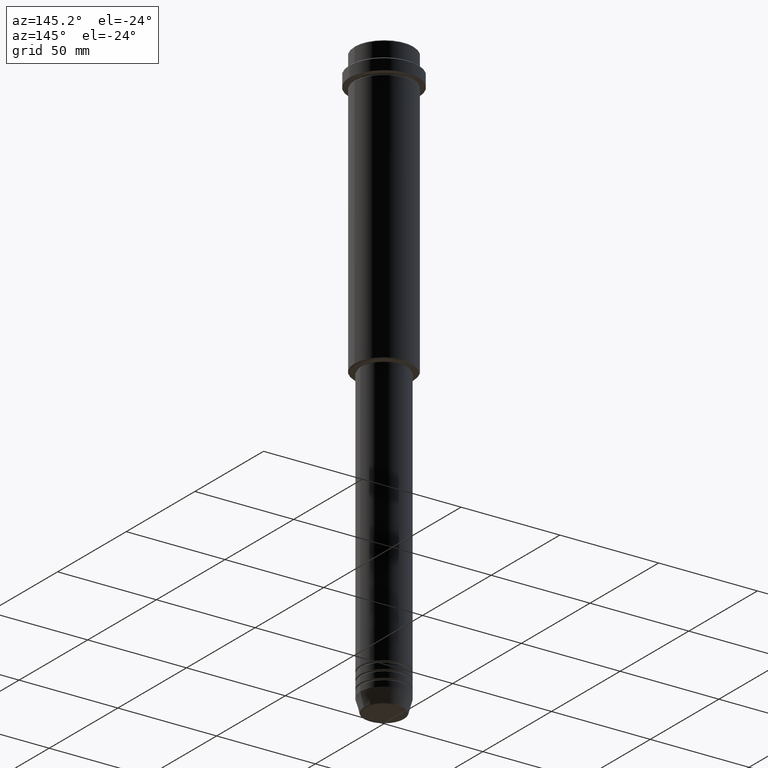
[diagram: clean part render]
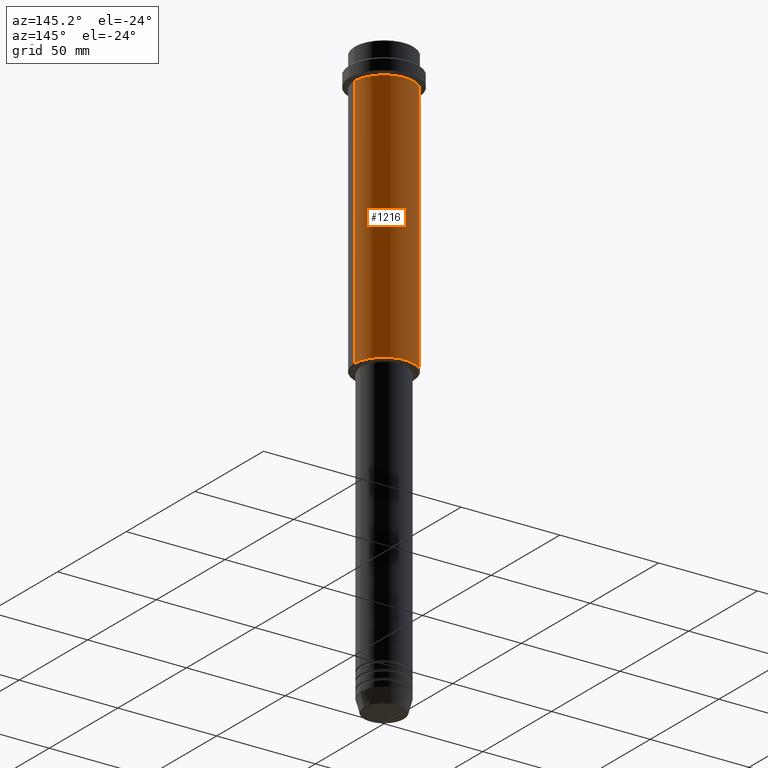
[diagram: same view with one face highlighted and labeled with its STEP entity id]
A machine part, auxiliary view. The second image highlights one B-rep face of the part: STEP entity #1216.
In plain terms, the highlighted cylindrical surface (edge-blend (fillet) strip) has radius 15 mm, axis along (-0, -0, 1).
Its self-contained STEP definition (entity closure, byte-faithful):
#14 = ORIENTED_EDGE ( 'NONE', *, *, #204, .T. ) ;
#29 = DIRECTION ( 'NONE',  ( 1.000000000000000000, 0.000000000000000000, 0.000000000000000000 ) ) ;
#51 = DIRECTION ( 'NONE',  ( -0.000000000000000000, -0.000000000000000000, 1.000000000000000000 ) ) ;
#67 = DIRECTION ( 'NONE',  ( -0.000000000000000000, -0.000000000000000000, 1.000000000000000000 ) ) ;
#73 = VERTEX_POINT ( 'NONE', #649 ) ;
#101 = VERTEX_POINT ( 'NONE', #1218 ) ;
#126 = CIRCLE ( 'NONE', #966, 15.00000000000000178 ) ;
#168 = EDGE_CURVE ( 'NONE', #73, #1340, #126, .T. ) ;
#204 = EDGE_CURVE ( 'NONE', #101, #1340, #774, .T. ) ;
#222 = AXIS2_PLACEMENT_3D ( 'NONE', #1399, #67, #311 ) ;
#241 = VECTOR ( 'NONE', #314, 1000.000000000000000 ) ;
#248 = CARTESIAN_POINT ( 'NONE',  ( 15.00000000000000000, 0.000000000000000000, -144.5000000000000568 ) ) ;
#311 = DIRECTION ( 'NONE',  ( 1.000000000000000000, 0.000000000000000000, 0.000000000000000000 ) ) ;
#314 = DIRECTION ( 'NONE',  ( -0.000000000000000000, -0.000000000000000000, 1.000000000000000000 ) ) ;
#390 = ORIENTED_EDGE ( 'NONE', *, *, #808, .F. ) ;
#391 = CYLINDRICAL_SURFACE ( 'NONE', #222, 15.00000000000000000 ) ;
#396 = VERTEX_POINT ( 'NONE', #248 ) ;
#585 = EDGE_LOOP ( 'NONE', ( #882, #14, #924, #390 ) ) ;
#588 = CARTESIAN_POINT ( 'NONE',  ( 0.000000000000000000, 0.000000000000000000, -16.00000000000000000 ) ) ;
#611 = CARTESIAN_POINT ( 'NONE',  ( 0.000000000000000000, 0.000000000000000000, -144.5000000000000568 ) ) ;
#615 = DIRECTION ( 'NONE',  ( -1.000000000000000000, 0.000000000000000000, 0.000000000000000000 ) ) ;
#630 = FACE_OUTER_BOUND ( 'NONE', #585, .T. ) ;
#649 = CARTESIAN_POINT ( 'NONE',  ( 15.00000000000000178, 0.000000000000000000, -16.00000000000000000 ) ) ;
#774 = LINE ( 'NONE', #1000, #891 ) ;
#786 = DIRECTION ( 'NONE',  ( -0.000000000000000000, -0.000000000000000000, 1.000000000000000000 ) ) ;
#808 = EDGE_CURVE ( 'NONE', #396, #73, #1278, .T. ) ;
#874 = CARTESIAN_POINT ( 'NONE',  ( 15.00000000000000000, 0.000000000000000000, 0.000000000000000000 ) ) ;
#882 = ORIENTED_EDGE ( 'NONE', *, *, #1175, .T. ) ;
#891 = VECTOR ( 'NONE', #786, 1000.000000000000000 ) ;
#924 = ORIENTED_EDGE ( 'NONE', *, *, #168, .F. ) ;
#966 = AXIS2_PLACEMENT_3D ( 'NONE', #588, #1033, #29 ) ;
#989 = CARTESIAN_POINT ( 'NONE',  ( -15.00000000000000355, 1.836970198721029983E-15, -16.00000000000000000 ) ) ;
#1000 = CARTESIAN_POINT ( 'NONE',  ( -15.00000000000000000, 1.836970198721029589E-15, 0.000000000000000000 ) ) ;
#1033 = DIRECTION ( 'NONE',  ( -0.000000000000000000, -0.000000000000000000, 1.000000000000000000 ) ) ;
#1169 = AXIS2_PLACEMENT_3D ( 'NONE', #611, #51, #615 ) ;
#1175 = EDGE_CURVE ( 'NONE', #396, #101, #1260, .T. ) ;
#1216 = ADVANCED_FACE ( 'NONE', ( #630 ), #391, .T. ) ;
#1218 = CARTESIAN_POINT ( 'NONE',  ( -15.00000000000000000, 1.836970198721029589E-15, -144.5000000000000568 ) ) ;
#1260 = CIRCLE ( 'NONE', #1169, 15.00000000000000000 ) ;
#1278 = LINE ( 'NONE', #874, #241 ) ;
#1340 = VERTEX_POINT ( 'NONE', #989 ) ;
#1399 = CARTESIAN_POINT ( 'NONE',  ( 0.000000000000000000, 0.000000000000000000, 0.000000000000000000 ) ) ;